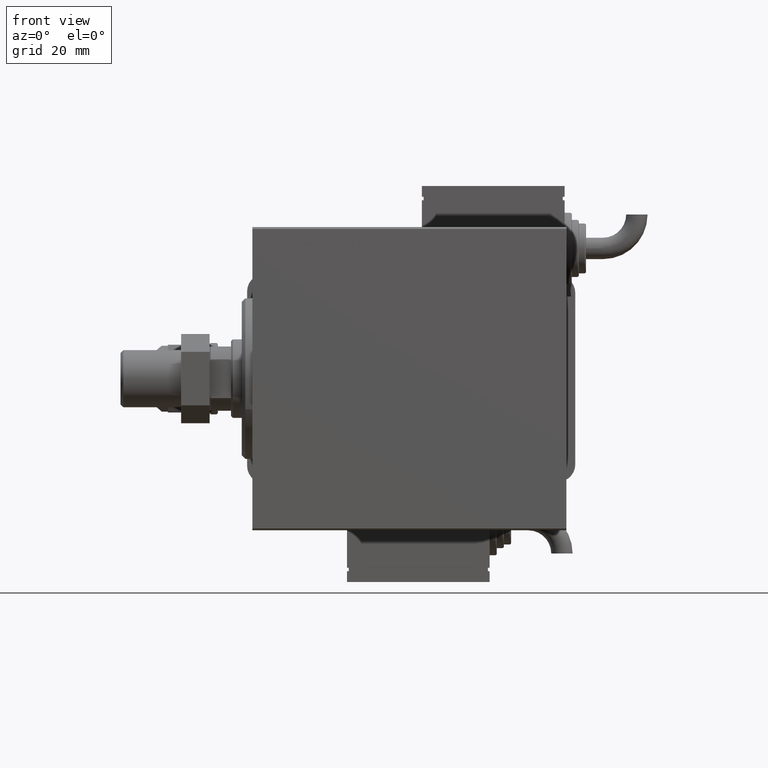
[diagram: clean part render]
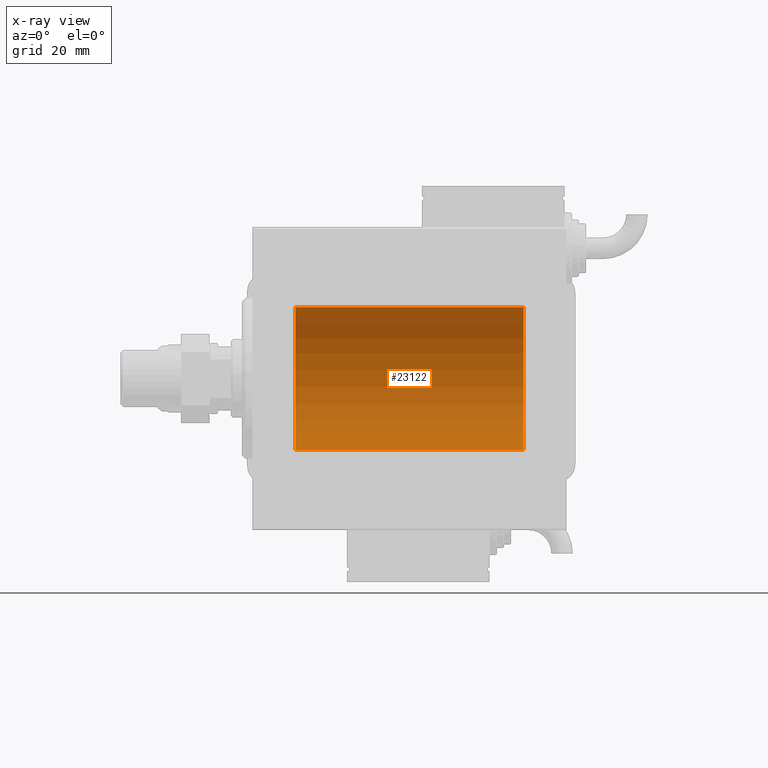
[diagram: x-ray — body ghosted, one internal face saturated and labeled with its STEP entity id]
A machine part, front view, then the same camera in x-ray: the body is ghosted and one INTERNAL B-rep face — a face not visible from any outside direction — is saturated and labeled: STEP entity #23122.
In plain terms, the highlighted cylindrical surface (partial cylindrical patch) has radius 20 mm, axis along (-1, -0, -0).
Its self-contained STEP definition (entity closure, byte-faithful):
#340 = CARTESIAN_POINT ( 'NONE',  ( 76.00000000000000000, 2.449293598294706513E-15, -20.00000000000000000 ) ) ;
#1109 = AXIS2_PLACEMENT_3D ( 'NONE', #54846, #8752, #4508 ) ;
#4508 = DIRECTION ( 'NONE',  ( 0.000000000000000000, 0.000000000000000000, 1.000000000000000000 ) ) ;
#4945 = ORIENTED_EDGE ( 'NONE', *, *, #36087, .F. ) ;
#5075 = VERTEX_POINT ( 'NONE', #340 ) ;
#7666 = CARTESIAN_POINT ( 'NONE',  ( 76.00000000000000000, 0.000000000000000000, 0.000000000000000000 ) ) ;
#8241 = VECTOR ( 'NONE', #12713, 1000.000000000000000 ) ;
#8752 = DIRECTION ( 'NONE',  ( -1.000000000000000000, -0.000000000000000000, -0.000000000000000000 ) ) ;
#12419 = CARTESIAN_POINT ( 'NONE',  ( 76.00000000000000000, 2.449293598294706513E-15, -20.00000000000000000 ) ) ;
#12713 = DIRECTION ( 'NONE',  ( -1.000000000000000000, -0.000000000000000000, -0.000000000000000000 ) ) ;
#14848 = DIRECTION ( 'NONE',  ( -1.000000000000000000, 0.000000000000000000, 0.000000000000000000 ) ) ;
#15068 = VECTOR ( 'NONE', #24611, 1000.000000000000000 ) ;
#16076 = ORIENTED_EDGE ( 'NONE', *, *, #28744, .T. ) ;
#17883 = AXIS2_PLACEMENT_3D ( 'NONE', #7666, #40375, #45226 ) ;
#21261 = ORIENTED_EDGE ( 'NONE', *, *, #35718, .F. ) ;
#22771 = CARTESIAN_POINT ( 'NONE',  ( 76.00000000000000000, 0.000000000000000000, 20.00000000000000000 ) ) ;
#23122 = ADVANCED_FACE ( 'NONE', ( #49986 ), #32681, .F. ) ;
#23646 = DIRECTION ( 'NONE',  ( 0.000000000000000000, 0.000000000000000000, 1.000000000000000000 ) ) ;
#24611 = DIRECTION ( 'NONE',  ( -1.000000000000000000, -0.000000000000000000, -0.000000000000000000 ) ) ;
#26181 = CARTESIAN_POINT ( 'NONE',  ( 11.99999999999999645, 2.449293598294706513E-15, -20.00000000000000000 ) ) ;
#28744 = EDGE_CURVE ( 'NONE', #45401, #40641, #45714, .T. ) ;
#28866 = CARTESIAN_POINT ( 'NONE',  ( 76.00000000000000000, 0.000000000000000000, 20.00000000000000000 ) ) ;
#32681 = CYLINDRICAL_SURFACE ( 'NONE', #1109, 20.00000000000000000 ) ;
#34621 = LINE ( 'NONE', #28866, #15068 ) ;
#35468 = LINE ( 'NONE', #12419, #8241 ) ;
#35718 = EDGE_CURVE ( 'NONE', #51683, #5075, #40182, .T. ) ;
#36087 = EDGE_CURVE ( 'NONE', #5075, #40641, #35468, .T. ) ;
#40182 = CIRCLE ( 'NONE', #17883, 20.00000000000000000 ) ;
#40375 = DIRECTION ( 'NONE',  ( -1.000000000000000000, 0.000000000000000000, 0.000000000000000000 ) ) ;
#40641 = VERTEX_POINT ( 'NONE', #26181 ) ;
#40925 = EDGE_CURVE ( 'NONE', #51683, #45401, #34621, .T. ) ;
#41833 = AXIS2_PLACEMENT_3D ( 'NONE', #47597, #14848, #23646 ) ;
#42132 = CARTESIAN_POINT ( 'NONE',  ( 11.99999999999999645, 0.000000000000000000, 20.00000000000000000 ) ) ;
#45226 = DIRECTION ( 'NONE',  ( 0.000000000000000000, 0.000000000000000000, 1.000000000000000000 ) ) ;
#45401 = VERTEX_POINT ( 'NONE', #42132 ) ;
#45714 = CIRCLE ( 'NONE', #41833, 20.00000000000000000 ) ;
#47597 = CARTESIAN_POINT ( 'NONE',  ( 11.99999999999999645, 0.000000000000000000, 0.000000000000000000 ) ) ;
#49986 = FACE_OUTER_BOUND ( 'NONE', #53792, .T. ) ;
#51096 = ORIENTED_EDGE ( 'NONE', *, *, #40925, .T. ) ;
#51683 = VERTEX_POINT ( 'NONE', #22771 ) ;
#53792 = EDGE_LOOP ( 'NONE', ( #4945, #21261, #51096, #16076 ) ) ;
#54846 = CARTESIAN_POINT ( 'NONE',  ( 76.00000000000000000, 0.000000000000000000, 0.000000000000000000 ) ) ;